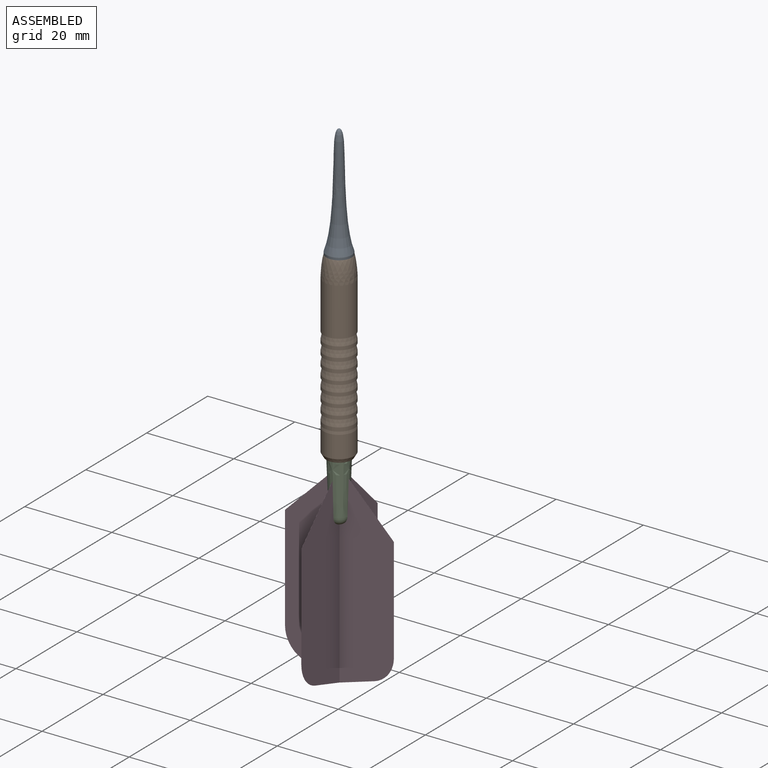
[diagram: assembled view]
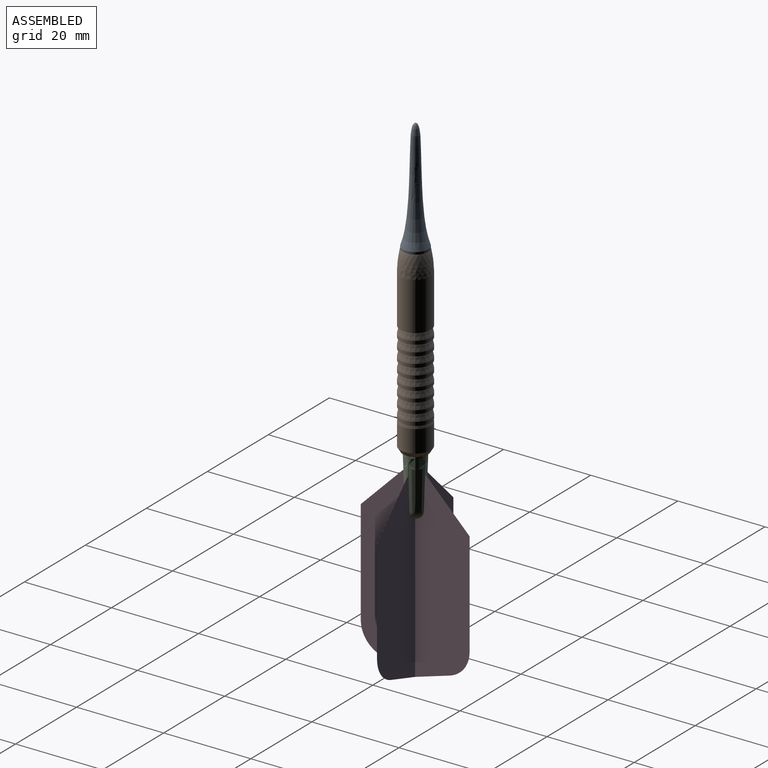
[diagram: assembled view, second angle]
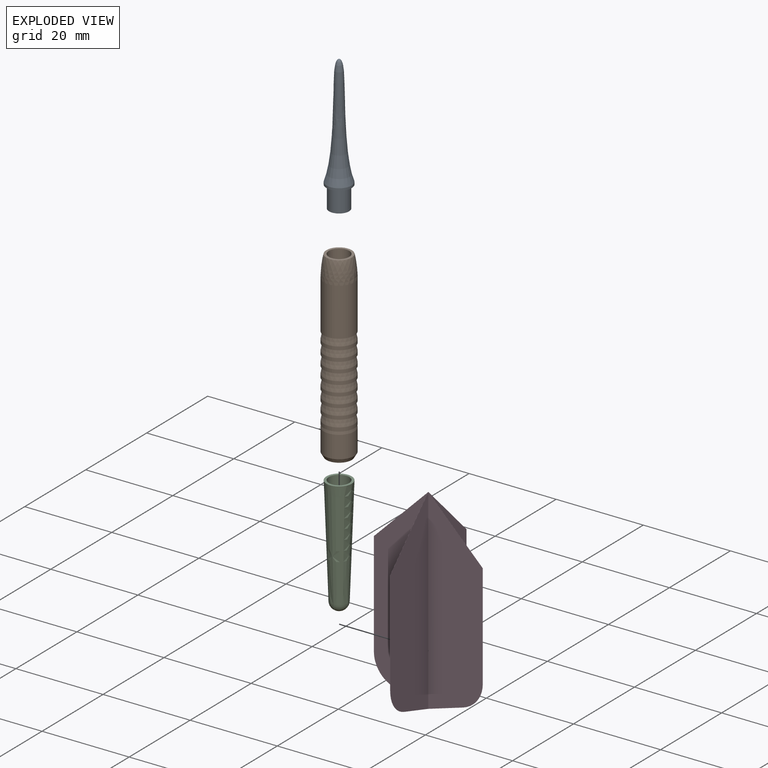
[diagram: exploded view]
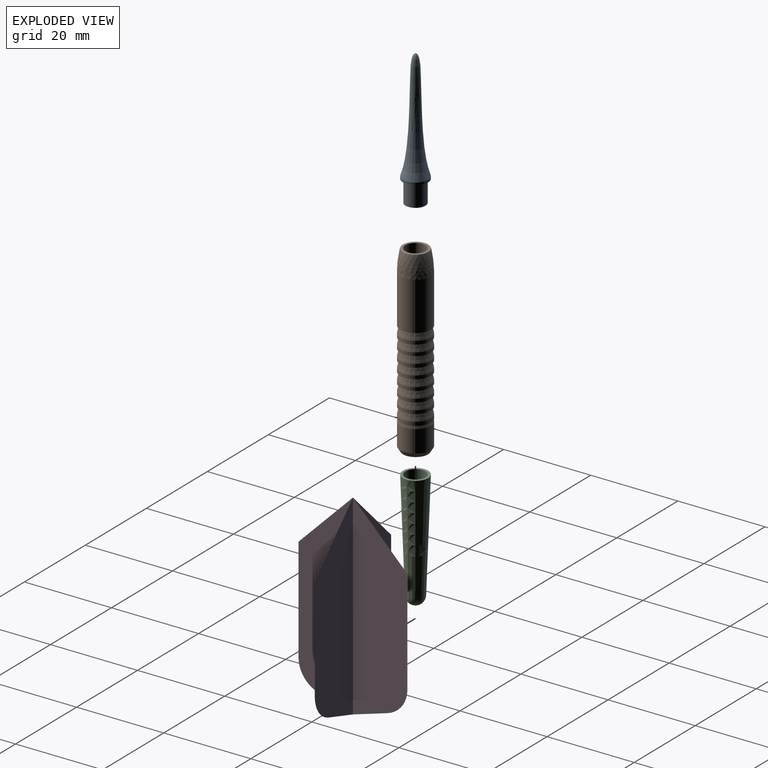
[diagram: exploded view, second angle]
ASSEMBLY  parts=4 mates=3
PART A: 6 faces, bbox 31x5.8x5.8 mm
  f0: plane 4.6x4.6mm, normal (1,0,0), area 16.6mm2, adj f1
  f1: cylinder r=2.3mm len=5mm, axis (-1,0,0), area 72.3mm2, adj f0,f2
  f2: plane 5.8x5.8mm, normal (1,0,0), area 9.8mm2, adj f1,f3
  f3: cylinder r=2.9mm len=5.8mm, axis (-1,0,0), area 9.5mm2, adj f2,f4
  f4: revolved ~20.83x5.8mm, area 200.4mm2, adj f3,f5
  f5: revolved ~4.65x2mm, area 24.7mm2, adj f4
PART B: 36 faces, bbox 42x7x7 mm
  f0: cylinder r=3.5mm len=11mm, axis (1,0,0), area 241.9mm2, adj f1,f5
  f1: revolved ~7x7mm, area 104.8mm2, adj f0,f2
  f2: plane 5.8x5.8mm, normal (-1,0,0), area 9.1mm2, adj f1,f3
  f3: cylinder r=2.35mm len=12mm, axis (1,0,0), area 177.2mm2, adj f2,f4
  f4: plane 4.7x4.7mm, normal (-1,0,0), area 17.3mm2, adj f3
  f5: cone r=3.5mm half-angle=71.6deg, axis (-1,0,0), area 6.7mm2, adj f0,f6
  f6: cone r=3.2mm half-angle=11.3deg, axis (1,0,0), area 32.2mm2, adj f5,f7
  f7: cylinder r=3.5mm len=7mm, axis (1,0,0), area 17.6mm2, adj f6,f8
  f8: cone r=3.5mm half-angle=71.6deg, axis (-1,0,0), area 6.7mm2, adj f7,f9
  f9: cone r=3.2mm half-angle=11.3deg, axis (1,0,0), area 32.2mm2, adj f8,f10
  f10: cylinder r=3.5mm len=7mm, axis (1,0,0), area 17.6mm2, adj f9,f11
  f11: cone r=3.5mm half-angle=71.6deg, axis (-1,0,0), area 6.7mm2, adj f10,f12
  f12: cone r=3.2mm half-angle=11.3deg, axis (1,0,0), area 32.2mm2, adj f11,f13
  f13: cylinder r=3.5mm len=7mm, axis (1,0,0), area 17.6mm2, adj f12,f14
  f14: cone r=3.5mm half-angle=71.6deg, axis (-1,0,0), area 6.7mm2, adj f13,f15
  f15: cone r=3.2mm half-angle=11.3deg, axis (1,0,0), area 32.2mm2, adj f14,f16
  f16: cylinder r=3.5mm len=7mm, axis (1,0,0), area 17.6mm2, adj f15,f17
  f17: cone r=3.5mm half-angle=71.6deg, axis (-1,0,0), area 6.7mm2, adj f16,f18
  f18: cone r=3.2mm half-angle=11.3deg, axis (1,0,0), area 32.2mm2, adj f17,f19
  f19: cylinder r=3.5mm len=7mm, axis (1,0,0), area 17.6mm2, adj f18,f20
  f20: cone r=3.5mm half-angle=71.6deg, axis (-1,0,0), area 6.7mm2, adj f19,f21
  f21: cone r=3.2mm half-angle=11.3deg, axis (1,0,0), area 32.2mm2, adj f20,f22
  f22: cylinder r=3.5mm len=7mm, axis (1,0,0), area 17.6mm2, adj f21,f23
  f23: cone r=3.5mm half-angle=71.6deg, axis (-1,0,0), area 6.7mm2, adj f22,f24
  f24: cone r=3.2mm half-angle=11.3deg, axis (1,0,0), area 32.2mm2, adj f23,f25
  f25: cylinder r=3.5mm len=7mm, axis (1,0,0), area 17.6mm2, adj f24,f26
  f26: cone r=3.5mm half-angle=71.6deg, axis (-1,0,0), area 6.7mm2, adj f25,f27
  f27: cone r=3.2mm half-angle=11.3deg, axis (1,0,0), area 32.2mm2, adj f26,f28
  f28: cylinder r=3.5mm len=7mm, axis (1,0,0), area 19.1mm2, adj f27,f29
  f29: cone r=3.4mm half-angle=71.6deg, axis (-1,0,0), area 2.3mm2, adj f28,f30
  f30: cone r=3.4mm half-angle=9deg, axis (1,0,0), area 13.9mm2, adj f29,f35
  f31: plane 4.7x4.7mm, normal (1,0,0), area 17.3mm2, adj f32
  f32: cylinder r=2.35mm len=14.4mm, axis (1,0,0), area 212.6mm2, adj f31,f33
  f33: plane 5.8x5.8mm, normal (1,0,0), area 9.1mm2, adj f32,f34
  f34: cone r=3.5mm half-angle=31deg, axis (-1,0,0), area 23.4mm2, adj f33,f35
  f35: cylinder r=3.5mm len=7mm, axis (1,0,0), area 111.4mm2, adj f30,f34
PART C: 17 faces, bbox 27x5.8x5.8 mm
  f0: sphere r=2mm, area 5.8mm2, adj f3,f10,f13
  f1: sphere r=2mm, area 5.5mm2, adj f3,f9,f15
  f2: sphere r=2mm, area 5.8mm2, adj f3,f11,f16
  f3: cone r=2mm half-angle=2.1deg, axis (-1,0,0), area 382.1mm2, adj f0,f1,f2,f5,f6,f8,f9,f10
  f4: plane 4.7x4.7mm, normal (-1,0,0), area 17.3mm2, adj f7
  f5: sphere r=2mm, area 6.1mm2, adj f3,f12,f14
  f6: plane 5.8x5.8mm, normal (-1,0,0), area 9.1mm2, adj f3,f7
  f7: cylinder r=2.35mm len=5.87mm, axis (-1,0,0), area 86.6mm2, adj f4,f6
  f8: plane 4.72x4.72mm, normal (1,0,0), area 0.9mm2, adj f3,f9,f10,f11,f12,f13,f14,f15
  f9: plane 12x2.26mm, normal (0,1,0), area 23.7mm2, adj f1,f3,f8,f15
  f10: plane 12x2.26mm, normal (0,-1,0), area 23.8mm2, adj f0,f3,f8,f13
  f11: plane 12x2.36mm, normal (0,1,0), area 24.9mm2, adj f2,f3,f8,f16
  f12: plane 12x2.36mm, normal (0,-1,0), area 25mm2, adj f3,f5,f8,f14
  f13: plane 12x2.36mm, normal (0,0,-1), area 24.9mm2, adj f0,f3,f8,f10
  f14: plane 12x2.36mm, normal (0,0,1), area 25mm2, adj f3,f5,f8,f12
  f15: plane 12x2.26mm, normal (0,0,-1), area 23.7mm2, adj f1,f3,f8,f9
  f16: plane 12x2.26mm, normal (0,0,1), area 23.8mm2, adj f2,f3,f8,f11
PART D: 32 faces, bbox 45x25x25 mm
  f0: plane 0.01x0mm, normal (0,0,1), area 0mm2, adj f6,f7,f23
  f1: plane 0.01x0.01mm, normal (0,0,1), area 0mm2, adj f5,f7,f21
  f2: plane 44.99x12.49mm, normal (0,-1,0), area 456.1mm2, adj f3,f4,f5,f6,f30
  f3: cylinder r=6.36mm len=6.09mm, axis (0,-1,0), area 0.1mm2, adj f2,f4,f6,f7
  f4: plane 24x0.01mm, normal (0,0,-1), area 0.2mm2, adj f2,f3,f5,f7
  f5: plane 12.5x12.5mm, normal (-0.71,0,-0.71), area 0.2mm2, adj f1,f2,f4,f7,f8
  f6: plane 7.97x2.41mm, normal (0.96,0,-0.29), area 0.1mm2, adj f0,f2,f3,f7,f28
  f7: plane 45x12.5mm, normal (0,1,0), area 456.6mm2, adj f0,f1,f3,f4,f5,f6,f10
  f8: plane 0.01x0.01mm, normal (0,1,0), area 0mm2, adj f5,f27,f30
  f9: plane 0.01x0mm, normal (0,0,-1), area 0mm2, adj f16,f17,f29
  f10: plane 44.99x12.49mm, normal (0,0,-1), area 456.1mm2, adj f7,f19,f20,f21,f23
  f11: plane 0.01x0.01mm, normal (0,0,-1), area 0mm2, adj f15,f17,f27
  f12: plane 44.99x12.49mm, normal (0,1,0), area 456.1mm2, adj f13,f14,f15,f16,f24
  f13: cylinder r=6.36mm len=6.09mm, axis (0,1,0), area 0.1mm2, adj f12,f14,f16,f17
  f14: plane 24x0.01mm, normal (0,0,1), area 0.2mm2, adj f12,f13,f15,f17
  f15: plane 12.5x12.5mm, normal (-0.71,0,0.71), area 0.2mm2, adj f11,f12,f14,f17,f22
  f16: plane 7.97x2.41mm, normal (0.96,0,0.29), area 0.1mm2, adj f9,f12,f13,f17,f18
  f17: plane 45x12.5mm, normal (0,-1,0), area 456.6mm2, adj f9,f11,f13,f14,f15,f16,f31
  f18: plane 0.01x0mm, normal (0,-1,0), area 0mm2, adj f16,f23,f24
  f19: cylinder r=6.36mm len=6.09mm, axis (0,0,-1), area 0.1mm2, adj f10,f20,f23,f24
  f20: plane 24x0.01mm, normal (0,1,0), area 0.2mm2, adj f10,f19,f21,f24
  f21: plane 12.5x12.5mm, normal (-0.71,0.71,0), area 0.2mm2, adj f1,f10,f20,f22,f24
  f22: plane 0.01x0.01mm, normal (0,-1,0), area 0mm2, adj f15,f21,f24
  f23: plane 7.97x2.41mm, normal (0.96,0.29,0), area 0.1mm2, adj f0,f10,f18,f19,f24
  f24: plane 45x12.5mm, normal (0,0,1), area 456.6mm2, adj f12,f18,f19,f20,f21,f22,f23
  f25: cylinder r=6.36mm len=6.09mm, axis (0,0,1), area 0.1mm2, adj f26,f29,f30,f31
  f26: plane 24x0.01mm, normal (0,-1,0), area 0.2mm2, adj f25,f27,f30,f31
  f27: plane 12.5x12.5mm, normal (-0.71,-0.71,0), area 0.2mm2, adj f8,f11,f26,f30,f31
  f28: plane 0.01x0mm, normal (0,1,0), area 0mm2, adj f6,f29,f30
  f29: plane 7.97x2.41mm, normal (0.96,-0.29,0), area 0.1mm2, adj f9,f25,f28,f30,f31
  f30: plane 45x12.5mm, normal (0,0,-1), area 456.6mm2, adj f2,f8,f25,f26,f27,f28,f29
  f31: plane 44.99x12.49mm, normal (0,0,1), area 456.1mm2, adj f17,f25,f26,f27,f29
PLACE A rot(axis=(0,1,0),90deg) t=(-4.48,26.67,12.46)mm
PLACE B rot(axis=(0,1,0),90deg) t=(-4.48,26.67,12.46)mm
PLACE C rot(axis=(0,1,0),90deg) t=(-4.48,26.67,25.53)mm
PLACE D rot(axis=(0,1,0),90deg) t=(-4.38,26.66,23.54)mm
MATE fastened C.f13 <-> D.f10  axis (1,0,0) through (-4.38,26.67,-43.47)mm
MATE revolute B.f9 <-> A.f1  axis (0,0,1) through (-4.48,26.67,12.46)mm
MATE revolute B.f32 <-> C.f3  axis (0,0,-1) through (-4.48,26.67,-22.34)mm
